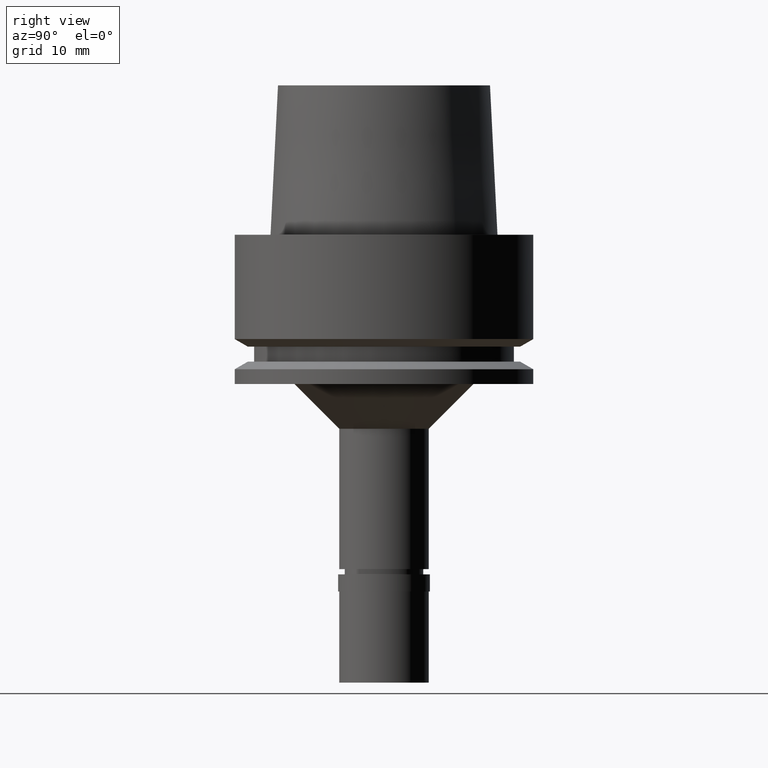
[diagram: clean part render]
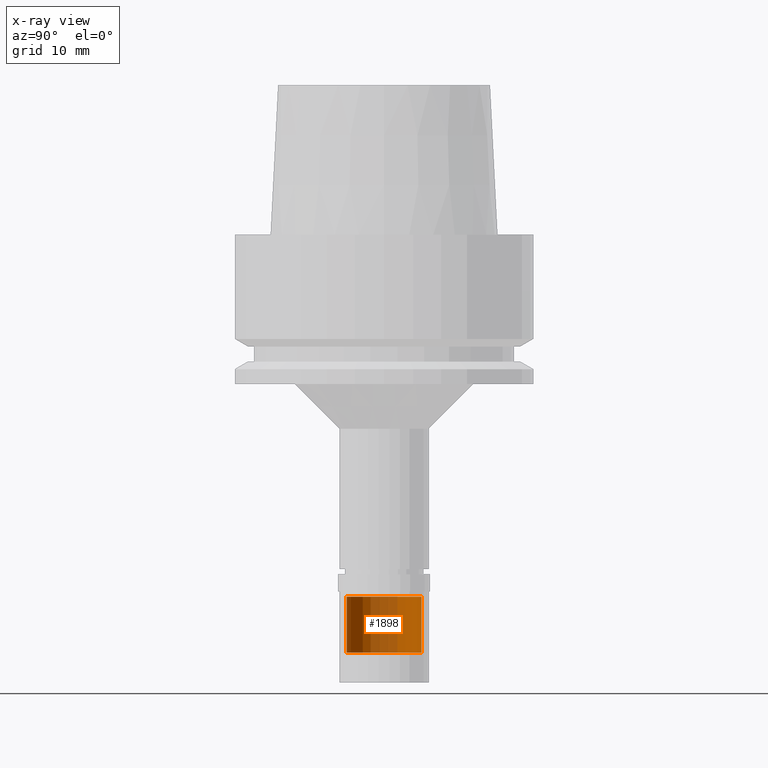
[diagram: x-ray — body ghosted, one internal face saturated and labeled with its STEP entity id]
A machine part, right view, then the same camera in x-ray: the body is ghosted and one INTERNAL B-rep face — a face not visible from any outside direction — is saturated and labeled: STEP entity #1898.
In plain terms, the highlighted cylindrical surface (partial cylindrical patch) has radius 5 mm, axis along (0, 0, 1).
Its self-contained STEP definition (entity closure, byte-faithful):
#13 = LINE ( 'NONE', #1687, #2266 ) ;
#56 = VERTEX_POINT ( 'NONE', #2061 ) ;
#81 = CARTESIAN_POINT ( 'NONE',  ( 0.0000000000000000000, 0.0000000000000000000, -56.00000000000000000 ) ) ;
#152 = CARTESIAN_POINT ( 'NONE',  ( 0.0000000000000000000, 0.0000000000000000000, -48.50000000000000000 ) ) ;
#389 = EDGE_CURVE ( 'NONE', #518, #1694, #2418, .T. ) ;
#518 = VERTEX_POINT ( 'NONE', #2446 ) ;
#557 = CARTESIAN_POINT ( 'NONE',  ( 0.0000000000000000000, -5.000000000000000000, -48.50000000000000000 ) ) ;
#702 = DIRECTION ( 'NONE',  ( 0.0000000000000000000, 1.000000000000000000, 0.0000000000000000000 ) ) ;
#891 = DIRECTION ( 'NONE',  ( 0.0000000000000000000, 0.0000000000000000000, -1.000000000000000000 ) ) ;
#942 = EDGE_LOOP ( 'NONE', ( #2468, #1112, #1513, #1316 ) ) ;
#979 = AXIS2_PLACEMENT_3D ( 'NONE', #152, #997, #2047 ) ;
#984 = VECTOR ( 'NONE', #1389, 1000.000000000000000 ) ;
#997 = DIRECTION ( 'NONE',  ( 0.0000000000000000000, 0.0000000000000000000, -1.000000000000000000 ) ) ;
#1112 = ORIENTED_EDGE ( 'NONE', *, *, #389, .F. ) ;
#1114 = DIRECTION ( 'NONE',  ( 0.0000000000000000000, 0.0000000000000000000, 1.000000000000000000 ) ) ;
#1138 = DIRECTION ( 'NONE',  ( 0.0000000000000000000, 1.000000000000000000, 0.0000000000000000000 ) ) ;
#1181 = DIRECTION ( 'NONE',  ( 0.0000000000000000000, 0.0000000000000000000, 1.000000000000000000 ) ) ;
#1285 = EDGE_CURVE ( 'NONE', #56, #1694, #1594, .T. ) ;
#1298 = CARTESIAN_POINT ( 'NONE',  ( 0.0000000000000000000, 0.0000000000000000000, -59.79999999999999716 ) ) ;
#1316 = ORIENTED_EDGE ( 'NONE', *, *, #1928, .T. ) ;
#1366 = CIRCLE ( 'NONE', #979, 5.000000000000000000 ) ;
#1389 = DIRECTION ( 'NONE',  ( 0.0000000000000000000, 0.0000000000000000000, -1.000000000000000000 ) ) ;
#1513 = ORIENTED_EDGE ( 'NONE', *, *, #2488, .T. ) ;
#1528 = VERTEX_POINT ( 'NONE', #1710 ) ;
#1594 = CIRCLE ( 'NONE', #2629, 5.000000000000000000 ) ;
#1687 = CARTESIAN_POINT ( 'NONE',  ( 0.0000000000000000000, 5.000000000000000000, -48.50000000000000000 ) ) ;
#1694 = VERTEX_POINT ( 'NONE', #1768 ) ;
#1710 = CARTESIAN_POINT ( 'NONE',  ( 0.0000000000000000000, 5.000000000000000000, -48.50000000000000000 ) ) ;
#1768 = CARTESIAN_POINT ( 'NONE',  ( 0.0000000000000000000, -5.000000000000000000, -56.00000000000000000 ) ) ;
#1843 = AXIS2_PLACEMENT_3D ( 'NONE', #1298, #1114, #702 ) ;
#1898 = ADVANCED_FACE ( 'NONE', ( #2114 ), #2147, .T. ) ;
#1928 = EDGE_CURVE ( 'NONE', #1528, #56, #13, .T. ) ;
#2047 = DIRECTION ( 'NONE',  ( 0.0000000000000000000, -1.000000000000000000, 0.0000000000000000000 ) ) ;
#2061 = CARTESIAN_POINT ( 'NONE',  ( 0.0000000000000000000, 5.000000000000000000, -56.00000000000000000 ) ) ;
#2114 = FACE_OUTER_BOUND ( 'NONE', #942, .T. ) ;
#2147 = CYLINDRICAL_SURFACE ( 'NONE', #1843, 5.000000000000000000 ) ;
#2266 = VECTOR ( 'NONE', #891, 1000.000000000000000 ) ;
#2418 = LINE ( 'NONE', #557, #984 ) ;
#2446 = CARTESIAN_POINT ( 'NONE',  ( 0.0000000000000000000, -5.000000000000000000, -48.50000000000000000 ) ) ;
#2468 = ORIENTED_EDGE ( 'NONE', *, *, #1285, .T. ) ;
#2488 = EDGE_CURVE ( 'NONE', #518, #1528, #1366, .T. ) ;
#2629 = AXIS2_PLACEMENT_3D ( 'NONE', #81, #1181, #1138 ) ;